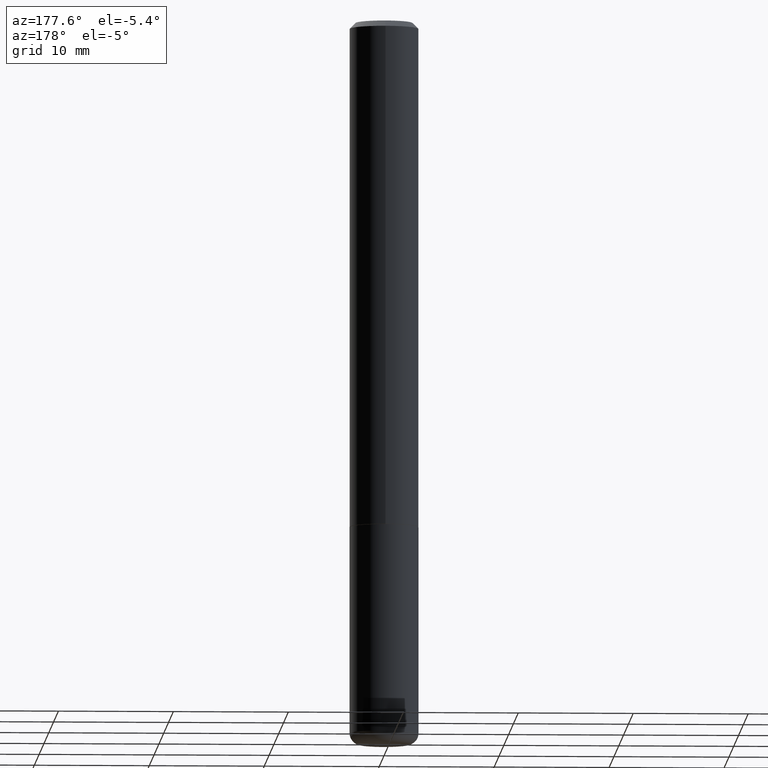
[diagram: clean part render]
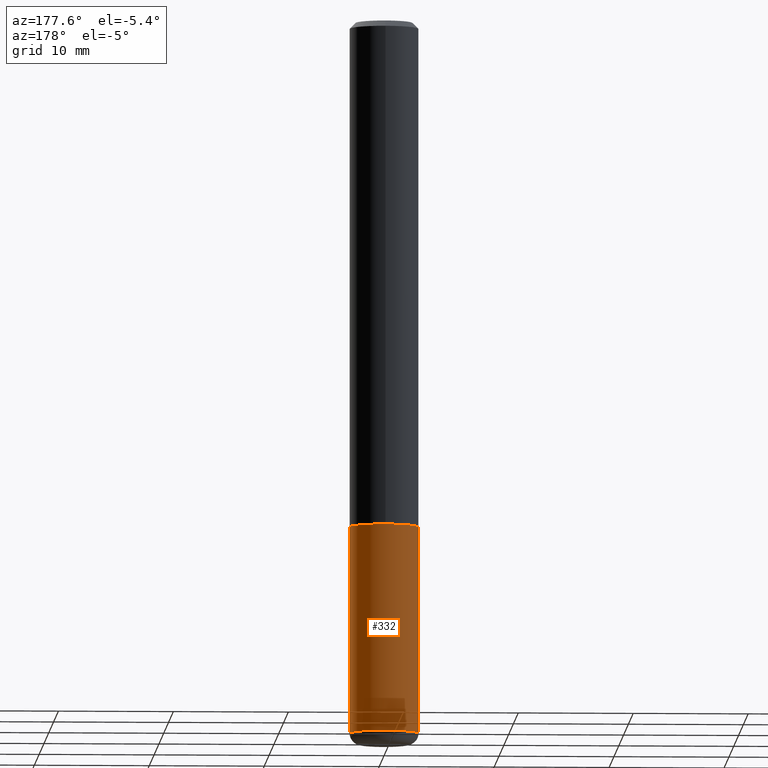
[diagram: same view with one face highlighted and labeled with its STEP entity id]
A machine part, auxiliary view. The second image highlights one B-rep face of the part: STEP entity #332.
In plain terms, the highlighted cylindrical surface (edge-blend (fillet) strip) has radius 2.9997 mm, axis along (-0, 0, 1).
Its self-contained STEP definition (entity closure, byte-faithful):
#19 = DIRECTION ( 'NONE',  ( 1.000000000000000000, -6.982962677686272233E-15, 0.000000000000000000 ) ) ;
#22 = AXIS2_PLACEMENT_3D ( 'NONE', #245, #144, #19 ) ;
#30 = CIRCLE ( 'NONE', #22, 0.1181000000000000105 ) ;
#35 = VECTOR ( 'NONE', #146, 39.37007874015748143 ) ;
#81 = CARTESIAN_POINT ( 'NONE',  ( 0.1180999999999999966, -8.246878922347480654E-16, 5.758764772215000440E-30 ) ) ;
#86 = LINE ( 'NONE', #226, #235 ) ;
#89 = DIRECTION ( 'NONE',  ( -2.445468806185136877E-29, 3.491481338843145188E-15, 1.000000000000000000 ) ) ;
#91 = CARTESIAN_POINT ( 'NONE',  ( 4.236285612954512953E-29, -6.048293123277982656E-15, -1.732300000000000173 ) ) ;
#110 = CARTESIAN_POINT ( 'NONE',  ( -0.1180999999999999966, -6.446173990697430008E-15, -1.732300000000000173 ) ) ;
#118 = DIRECTION ( 'NONE',  ( 1.000000000000000000, -6.982962677686265133E-15, 0.000000000000000000 ) ) ;
#136 = AXIS2_PLACEMENT_3D ( 'NONE', #349, #186, #353 ) ;
#144 = DIRECTION ( 'NONE',  ( -2.445468806185136597E-29, 3.491481338843145583E-15, 1.000000000000000000 ) ) ;
#146 = DIRECTION ( 'NONE',  ( -2.445468806185136877E-29, 3.491481338843145188E-15, 1.000000000000000000 ) ) ;
#152 = ORIENTED_EDGE ( 'NONE', *, *, #397, .F. ) ;
#160 = VERTEX_POINT ( 'NONE', #279 ) ;
#182 = EDGE_CURVE ( 'NONE', #265, #201, #30, .T. ) ;
#186 = DIRECTION ( 'NONE',  ( -2.445468806185136597E-29, 3.491481338843145583E-15, 1.000000000000000000 ) ) ;
#201 = VERTEX_POINT ( 'NONE', #218 ) ;
#218 = CARTESIAN_POINT ( 'NONE',  ( -0.1180999999999998995, -7.683205829049557135E-15, -2.440900000000000070 ) ) ;
#223 = ORIENTED_EDGE ( 'NONE', *, *, #381, .F. ) ;
#225 = VERTEX_POINT ( 'NONE', #110 ) ;
#226 = CARTESIAN_POINT ( 'NONE',  ( -0.1180999999999999966, 8.391509709326782957E-16, -5.809262341591043784E-30 ) ) ;
#229 = LINE ( 'NONE', #81, #35 ) ;
#232 = ORIENTED_EDGE ( 'NONE', *, *, #386, .T. ) ;
#235 = VECTOR ( 'NONE', #89, 39.37007874015748143 ) ;
#245 = CARTESIAN_POINT ( 'NONE',  ( 5.969144809017300159E-29, -8.522356799982234543E-15, -2.440900000000000070 ) ) ;
#255 = CYLINDRICAL_SURFACE ( 'NONE', #136, 0.1180999999999999966 ) ;
#265 = VERTEX_POINT ( 'NONE', #342 ) ;
#269 = CIRCLE ( 'NONE', #287, 0.1180999999999999966 ) ;
#279 = CARTESIAN_POINT ( 'NONE',  ( 0.1180999999999999966, -6.872981015512730130E-15, -1.732300000000000173 ) ) ;
#287 = AXIS2_PLACEMENT_3D ( 'NONE', #91, #410, #118 ) ;
#332 = ADVANCED_FACE ( 'NONE', ( #355 ), #255, .T. ) ;
#342 = CARTESIAN_POINT ( 'NONE',  ( 0.1180999999999998995, -9.347044692216981228E-15, -2.440900000000000070 ) ) ;
#348 = ORIENTED_EDGE ( 'NONE', *, *, #182, .T. ) ;
#349 = CARTESIAN_POINT ( 'NONE',  ( 0.000000000000000000, 0.000000000000000000, 0.000000000000000000 ) ) ;
#353 = DIRECTION ( 'NONE',  ( 1.000000000000000000, -6.982962677686266711E-15, 4.876176775795936353E-29 ) ) ;
#355 = FACE_OUTER_BOUND ( 'NONE', #388, .T. ) ;
#381 = EDGE_CURVE ( 'NONE', #160, #225, #269, .T. ) ;
#386 = EDGE_CURVE ( 'NONE', #201, #225, #86, .T. ) ;
#388 = EDGE_LOOP ( 'NONE', ( #348, #232, #223, #152 ) ) ;
#397 = EDGE_CURVE ( 'NONE', #265, #160, #229, .T. ) ;
#410 = DIRECTION ( 'NONE',  ( -2.445468806185136597E-29, 3.491481338843145583E-15, 1.000000000000000000 ) ) ;